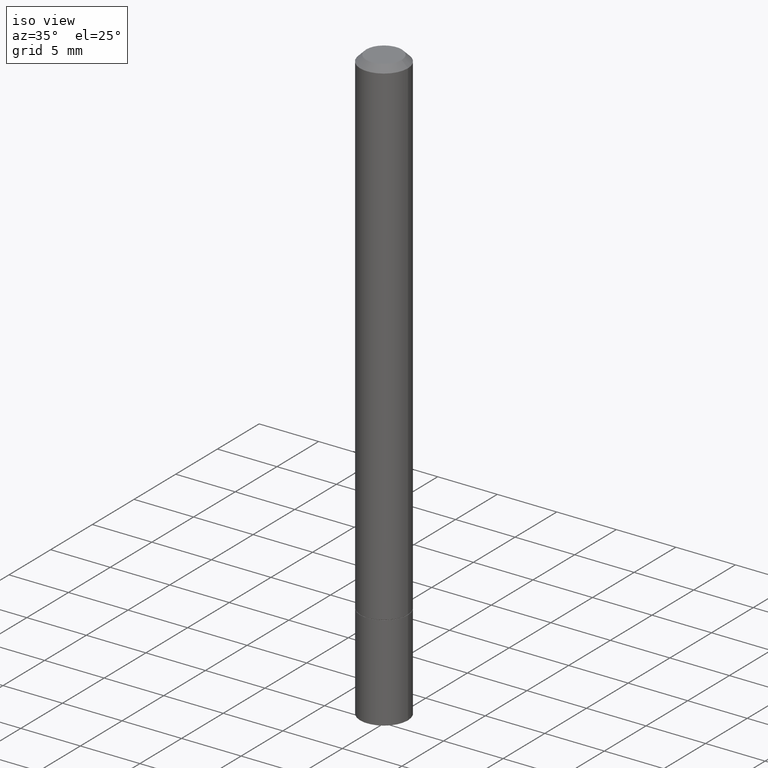
[diagram: clean part render]
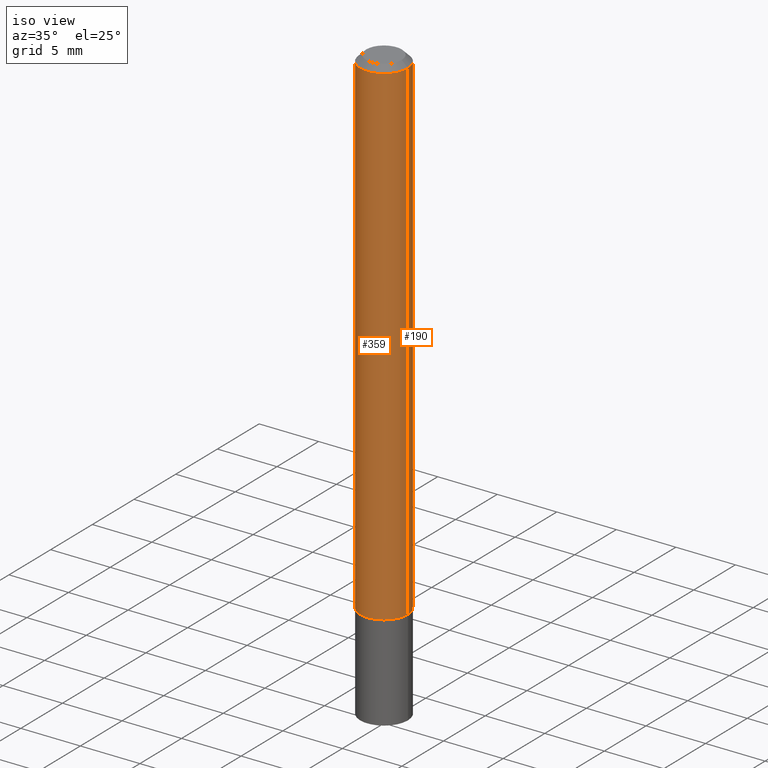
[diagram: same view with one multi-face feature highlighted, each face labeled with its STEP entity id]
A machine part, iso view. The highlighted faces form ONE feature: a constant-radius fillet chain: 2 tangent blend faces with common blend radius 2.0002 mm. The faces share edges in the B-rep.
Their STEP definitions:
[1] entity #359 (Cylinder):
#3 = DIRECTION ( 'NONE',  ( 1.000000000000000000, -6.982962677686266711E-15, 0.000000000000000000 ) ) ;
#11 = DIRECTION ( 'NONE',  ( 1.000000000000000000, -6.982962677686266711E-15, 4.876176775795935793E-29 ) ) ;
#17 = DIRECTION ( 'NONE',  ( -2.445468806185136877E-29, 3.491481338843145188E-15, 1.000000000000000000 ) ) ;
#18 = CIRCLE ( 'NONE', #94, 0.07874999999999980627 ) ;
#32 = CARTESIAN_POINT ( 'NONE',  ( 0.07874999999999988953, -5.499083108677927540E-16, 3.839989210939294112E-30 ) ) ;
#39 = CARTESIAN_POINT ( 'NONE',  ( 0.000000000000000000, 0.000000000000000000, 0.000000000000000000 ) ) ;
#51 = CIRCLE ( 'NONE', #148, 0.07874999999999997280 ) ;
#53 = VERTEX_POINT ( 'NONE', #253 ) ;
#56 = LINE ( 'NONE', #32, #274 ) ;
#58 = EDGE_CURVE ( 'NONE', #323, #133, #223, .T. ) ;
#76 = ORIENTED_EDGE ( 'NONE', *, *, #106, .T. ) ;
#84 = CARTESIAN_POINT ( 'NONE',  ( 4.890937612370276662E-31, -6.982962677686296539E-17, -0.02000000000000001776 ) ) ;
#94 = AXIS2_PLACEMENT_3D ( 'NONE', #84, #111, #3 ) ;
#106 = EDGE_CURVE ( 'NONE', #323, #53, #51, .T. ) ;
#110 = DIRECTION ( 'NONE',  ( -2.445468806185136597E-29, 3.491481338843145583E-15, 1.000000000000000000 ) ) ;
#111 = DIRECTION ( 'NONE',  ( -2.445468806185136597E-29, 3.491481338843145583E-15, 1.000000000000000000 ) ) ;
#133 = VERTEX_POINT ( 'NONE', #174 ) ;
#136 = VECTOR ( 'NONE', #17, 39.37007874015748143 ) ;
#139 = EDGE_CURVE ( 'NONE', #53, #304, #56, .T. ) ;
#140 = CARTESIAN_POINT ( 'NONE',  ( 4.041137202220937598E-29, -5.769672912438298064E-15, -1.652499999999999858 ) ) ;
#145 = DIRECTION ( 'NONE',  ( -2.445468806185136877E-29, 3.491481338843145188E-15, 1.000000000000000000 ) ) ;
#147 = DIRECTION ( 'NONE',  ( 1.000000000000000000, -6.982962677686264344E-15, 0.000000000000000000 ) ) ;
#148 = AXIS2_PLACEMENT_3D ( 'NONE', #140, #110, #147 ) ;
#171 = EDGE_CURVE ( 'NONE', #133, #304, #18, .T. ) ;
#174 = CARTESIAN_POINT ( 'NONE',  ( -0.07874999999999980627, 4.800786840909291600E-16, -0.02000000000000001776 ) ) ;
#189 = AXIS2_PLACEMENT_3D ( 'NONE', #39, #267, #11 ) ;
#211 = ORIENTED_EDGE ( 'NONE', *, *, #58, .F. ) ;
#215 = FACE_OUTER_BOUND ( 'NONE', #302, .T. ) ;
#223 = LINE ( 'NONE', #339, #136 ) ;
#242 = CARTESIAN_POINT ( 'NONE',  ( 0.07874999999999980627, -6.100938441013697087E-16, -0.02000000000000001776 ) ) ;
#253 = CARTESIAN_POINT ( 'NONE',  ( 0.07874999999999997280, -6.319581223306091410E-15, -1.652499999999999858 ) ) ;
#264 = CYLINDRICAL_SURFACE ( 'NONE', #189, 0.07874999999999988953 ) ;
#267 = DIRECTION ( 'NONE',  ( -2.445468806185136597E-29, 3.491481338843145583E-15, 1.000000000000000000 ) ) ;
#274 = VECTOR ( 'NONE', #145, 39.37007874015748143 ) ;
#280 = ORIENTED_EDGE ( 'NONE', *, *, #139, .T. ) ;
#302 = EDGE_LOOP ( 'NONE', ( #211, #76, #280, #337 ) ) ;
#304 = VERTEX_POINT ( 'NONE', #242 ) ;
#323 = VERTEX_POINT ( 'NONE', #350 ) ;
#337 = ORIENTED_EDGE ( 'NONE', *, *, #171, .F. ) ;
#339 = CARTESIAN_POINT ( 'NONE',  ( -0.07874999999999988953, 5.595524044110781115E-16, -3.873661383575732887E-30 ) ) ;
#350 = CARTESIAN_POINT ( 'NONE',  ( -0.07874999999999997280, -2.360198865196498330E-15, -1.652499999999999858 ) ) ;
#359 = ADVANCED_FACE ( 'NONE', ( #215 ), #264, .T. ) ;
[2] entity #190 (Cylinder):
#17 = DIRECTION ( 'NONE',  ( -2.445468806185136877E-29, 3.491481338843145188E-15, 1.000000000000000000 ) ) ;
#32 = CARTESIAN_POINT ( 'NONE',  ( 0.07874999999999988953, -5.499083108677927540E-16, 3.839989210939294112E-30 ) ) ;
#36 = DIRECTION ( 'NONE',  ( 1.000000000000000000, -6.982962677686266711E-15, 0.000000000000000000 ) ) ;
#53 = VERTEX_POINT ( 'NONE', #253 ) ;
#56 = LINE ( 'NONE', #32, #274 ) ;
#57 = DIRECTION ( 'NONE',  ( 1.000000000000000000, -6.982962677686264344E-15, 0.000000000000000000 ) ) ;
#58 = EDGE_CURVE ( 'NONE', #323, #133, #223, .T. ) ;
#90 = CARTESIAN_POINT ( 'NONE',  ( 4.890937612370276662E-31, -6.982962677686296539E-17, -0.02000000000000001776 ) ) ;
#93 = EDGE_CURVE ( 'NONE', #53, #323, #281, .T. ) ;
#99 = ORIENTED_EDGE ( 'NONE', *, *, #139, .F. ) ;
#108 = CYLINDRICAL_SURFACE ( 'NONE', #213, 0.07874999999999988953 ) ;
#114 = AXIS2_PLACEMENT_3D ( 'NONE', #318, #317, #57 ) ;
#133 = VERTEX_POINT ( 'NONE', #174 ) ;
#136 = VECTOR ( 'NONE', #17, 39.37007874015748143 ) ;
#139 = EDGE_CURVE ( 'NONE', #53, #304, #56, .T. ) ;
#145 = DIRECTION ( 'NONE',  ( -2.445468806185136877E-29, 3.491481338843145188E-15, 1.000000000000000000 ) ) ;
#146 = CIRCLE ( 'NONE', #354, 0.07874999999999980627 ) ;
#165 = ORIENTED_EDGE ( 'NONE', *, *, #93, .T. ) ;
#174 = CARTESIAN_POINT ( 'NONE',  ( -0.07874999999999980627, 4.800786840909291600E-16, -0.02000000000000001776 ) ) ;
#190 = ADVANCED_FACE ( 'NONE', ( #255 ), #108, .T. ) ;
#213 = AXIS2_PLACEMENT_3D ( 'NONE', #231, #229, #316 ) ;
#223 = LINE ( 'NONE', #339, #136 ) ;
#229 = DIRECTION ( 'NONE',  ( -2.445468806185136597E-29, 3.491481338843145583E-15, 1.000000000000000000 ) ) ;
#231 = CARTESIAN_POINT ( 'NONE',  ( 0.000000000000000000, 0.000000000000000000, 0.000000000000000000 ) ) ;
#242 = CARTESIAN_POINT ( 'NONE',  ( 0.07874999999999980627, -6.100938441013697087E-16, -0.02000000000000001776 ) ) ;
#249 = ORIENTED_EDGE ( 'NONE', *, *, #58, .T. ) ;
#253 = CARTESIAN_POINT ( 'NONE',  ( 0.07874999999999997280, -6.319581223306091410E-15, -1.652499999999999858 ) ) ;
#255 = FACE_OUTER_BOUND ( 'NONE', #276, .T. ) ;
#274 = VECTOR ( 'NONE', #145, 39.37007874015748143 ) ;
#276 = EDGE_LOOP ( 'NONE', ( #165, #249, #308, #99 ) ) ;
#281 = CIRCLE ( 'NONE', #114, 0.07874999999999997280 ) ;
#297 = DIRECTION ( 'NONE',  ( -2.445468806185136597E-29, 3.491481338843145583E-15, 1.000000000000000000 ) ) ;
#304 = VERTEX_POINT ( 'NONE', #242 ) ;
#308 = ORIENTED_EDGE ( 'NONE', *, *, #338, .F. ) ;
#316 = DIRECTION ( 'NONE',  ( 1.000000000000000000, -6.982962677686266711E-15, 4.876176775795935793E-29 ) ) ;
#317 = DIRECTION ( 'NONE',  ( -2.445468806185136597E-29, 3.491481338843145583E-15, 1.000000000000000000 ) ) ;
#318 = CARTESIAN_POINT ( 'NONE',  ( 4.041137202220937598E-29, -5.769672912438298064E-15, -1.652499999999999858 ) ) ;
#323 = VERTEX_POINT ( 'NONE', #350 ) ;
#338 = EDGE_CURVE ( 'NONE', #304, #133, #146, .T. ) ;
#339 = CARTESIAN_POINT ( 'NONE',  ( -0.07874999999999988953, 5.595524044110781115E-16, -3.873661383575732887E-30 ) ) ;
#350 = CARTESIAN_POINT ( 'NONE',  ( -0.07874999999999997280, -2.360198865196498330E-15, -1.652499999999999858 ) ) ;
#354 = AXIS2_PLACEMENT_3D ( 'NONE', #90, #297, #36 ) ;